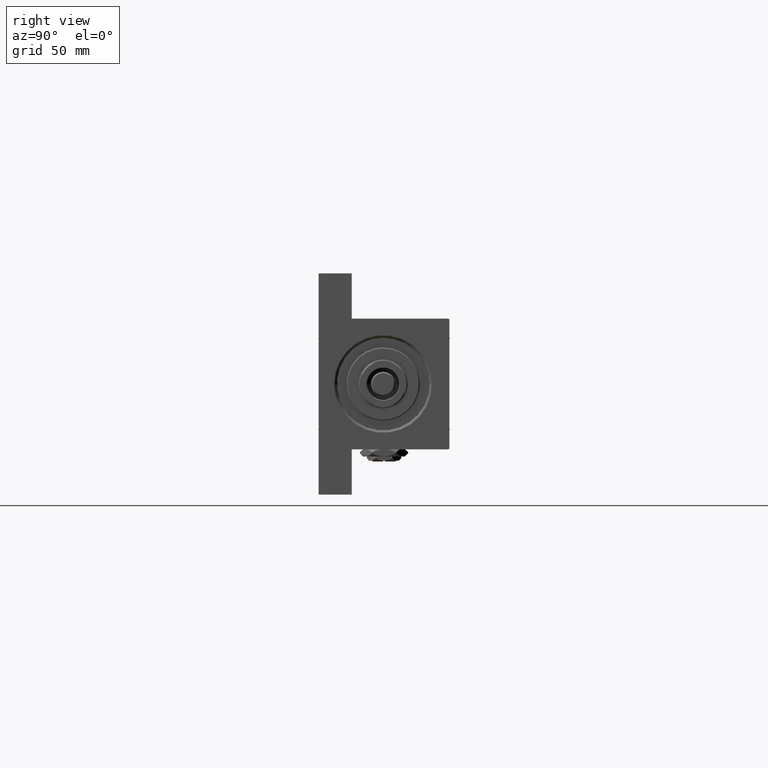
[diagram: clean part render]
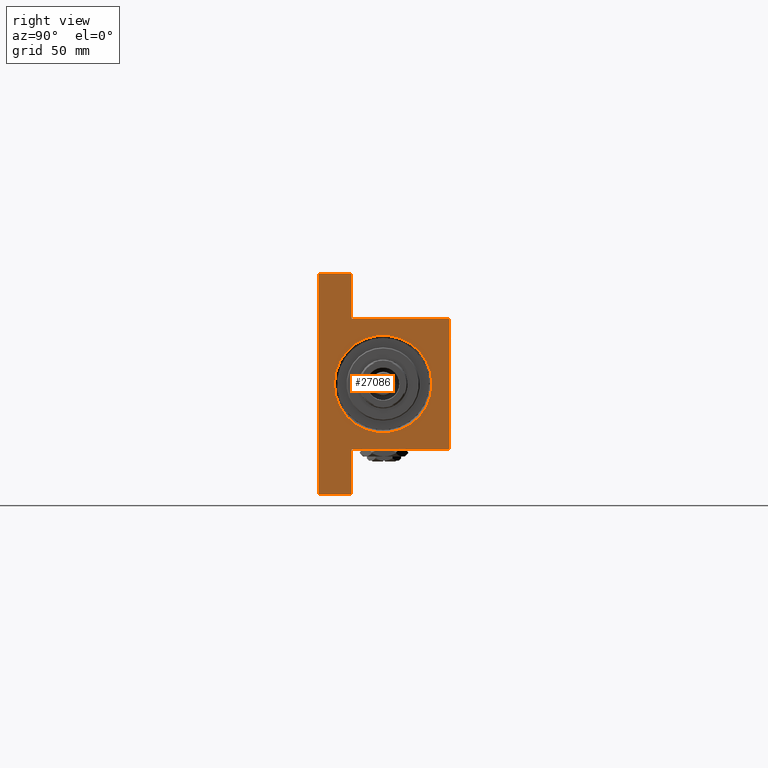
[diagram: same view with one face highlighted and labeled with its STEP entity id]
A machine part, right view. The second image highlights one B-rep face of the part: STEP entity #27086.
In plain terms, the highlighted planar face has unit normal (-1, 0, 0).
Its self-contained STEP definition (entity closure, byte-faithful):
#345 = VECTOR ( 'NONE', #2180, 1000.000000000000000 ) ;
#559 = ORIENTED_EDGE ( 'NONE', *, *, #13127, .T. ) ;
#2036 = DIRECTION ( 'NONE',  ( 0.000000000000000000, -0.7071067811865474617, 0.7071067811865474617 ) ) ;
#2180 = DIRECTION ( 'NONE',  ( 0.000000000000000000, -1.000000000000000000, 0.000000000000000000 ) ) ;
#2641 = DIRECTION ( 'NONE',  ( 0.000000000000000000, 0.000000000000000000, 1.000000000000000000 ) ) ;
#4149 = EDGE_CURVE ( 'NONE', #37457, #33156, #31468, .T. ) ;
#4625 = CARTESIAN_POINT ( 'NONE',  ( 333.9999999999999432, 0.000000000000000000, -28.49999999999994316 ) ) ;
#5819 = EDGE_CURVE ( 'NONE', #24150, #33156, #17921, .T. ) ;
#5919 = ORIENTED_EDGE ( 'NONE', *, *, #44639, .T. ) ;
#6065 = DIRECTION ( 'NONE',  ( 0.000000000000000000, -1.000000000000000000, -1.850371707708594316E-16 ) ) ;
#6443 = DIRECTION ( 'NONE',  ( -1.000000000000000000, -0.000000000000000000, 0.000000000000000000 ) ) ;
#7077 = LINE ( 'NONE', #45537, #20222 ) ;
#7768 = CARTESIAN_POINT ( 'NONE',  ( 333.9999999999999432, -37.50000000000000000, 36.99999999999992184 ) ) ;
#7821 = VECTOR ( 'NONE', #9609, 1000.000000000000000 ) ;
#7839 = PLANE ( 'NONE',  #18897 ) ;
#8930 = CARTESIAN_POINT ( 'NONE',  ( 333.9999999999999432, -36.99999999999994316, 37.49999999999997868 ) ) ;
#9609 = DIRECTION ( 'NONE',  ( 0.000000000000000000, -9.251858538542972814E-17, -1.000000000000000000 ) ) ;
#9745 = VERTEX_POINT ( 'NONE', #20756 ) ;
#10371 = VECTOR ( 'NONE', #2036, 1000.000000000000114 ) ;
#10665 = VERTEX_POINT ( 'NONE', #24639 ) ;
#11171 = CARTESIAN_POINT ( 'NONE',  ( 333.9999999999999432, -63.50000000000002842, -18.50000000000000000 ) ) ;
#11337 = VECTOR ( 'NONE', #16927, 1000.000000000000000 ) ;
#11373 = FACE_BOUND ( 'NONE', #25705, .T. ) ;
#11668 = ORIENTED_EDGE ( 'NONE', *, *, #40325, .T. ) ;
#12669 = ORIENTED_EDGE ( 'NONE', *, *, #33558, .T. ) ;
#12671 = DIRECTION ( 'NONE',  ( 0.000000000000000000, 0.000000000000000000, -1.000000000000000000 ) ) ;
#12873 = EDGE_CURVE ( 'NONE', #24150, #23277, #45204, .T. ) ;
#13127 = EDGE_CURVE ( 'NONE', #10665, #13437, #33282, .T. ) ;
#13182 = CARTESIAN_POINT ( 'NONE',  ( 333.9999999999999432, -63.50000000000002842, -18.50000000000000000 ) ) ;
#13412 = CARTESIAN_POINT ( 'NONE',  ( 333.9999999999999432, 36.99999999999994316, 37.49999999999999289 ) ) ;
#13437 = VERTEX_POINT ( 'NONE', #4625 ) ;
#14418 = CARTESIAN_POINT ( 'NONE',  ( 333.9999999999999432, 0.000000000000000000, -0.5000000000000004441 ) ) ;
#14943 = EDGE_CURVE ( 'NONE', #37986, #28603, #47356, .T. ) ;
#16044 = CARTESIAN_POINT ( 'NONE',  ( 333.9999999999999432, 37.50000000000000000, 37.49999999999999289 ) ) ;
#16179 = VECTOR ( 'NONE', #23640, 1000.000000000000000 ) ;
#16927 = DIRECTION ( 'NONE',  ( 0.000000000000000000, -1.000000000000000000, 0.000000000000000000 ) ) ;
#17151 = AXIS2_PLACEMENT_3D ( 'NONE', #37793, #6443, #2641 ) ;
#17921 = LINE ( 'NONE', #32615, #11337 ) ;
#18897 = AXIS2_PLACEMENT_3D ( 'NONE', #35646, #23761, #43232 ) ;
#19635 = VECTOR ( 'NONE', #41885, 1000.000000000000000 ) ;
#19707 = FACE_OUTER_BOUND ( 'NONE', #35972, .T. ) ;
#20061 = ORIENTED_EDGE ( 'NONE', *, *, #14943, .T. ) ;
#20121 = CARTESIAN_POINT ( 'NONE',  ( 333.9999999999999432, 37.50000000000000000, 36.99999999999993605 ) ) ;
#20222 = VECTOR ( 'NONE', #48852, 1000.000000000000000 ) ;
#20756 = CARTESIAN_POINT ( 'NONE',  ( 333.9999999999999432, 36.99999999999994316, 37.49999999999999289 ) ) ;
#21800 = CARTESIAN_POINT ( 'NONE',  ( 333.9999999999999432, 37.49999999999993605, -18.50000000000000000 ) ) ;
#22275 = CARTESIAN_POINT ( 'NONE',  ( 333.9999999999999432, 63.49999999999997158, -37.50000000000000000 ) ) ;
#22418 = VERTEX_POINT ( 'NONE', #42355 ) ;
#23161 = VECTOR ( 'NONE', #46972, 1000.000000000000114 ) ;
#23277 = VERTEX_POINT ( 'NONE', #22275 ) ;
#23640 = DIRECTION ( 'NONE',  ( 0.000000000000000000, 0.000000000000000000, -1.000000000000000000 ) ) ;
#23761 = DIRECTION ( 'NONE',  ( -1.000000000000000000, -0.000000000000000000, 0.000000000000000000 ) ) ;
#24150 = VERTEX_POINT ( 'NONE', #46556 ) ;
#24282 = CIRCLE ( 'NONE', #30736, 27.99999999999994316 ) ;
#24639 = CARTESIAN_POINT ( 'NONE',  ( 333.9999999999999432, 3.429011037612582176E-15, 27.49999999999993960 ) ) ;
#25453 = LINE ( 'NONE', #33536, #345 ) ;
#25480 = CARTESIAN_POINT ( 'NONE',  ( 333.9999999999999432, 63.49999999999997158, -18.50000000000000000 ) ) ;
#25541 = CARTESIAN_POINT ( 'NONE',  ( 333.9999999999999432, -37.50000000000000000, 37.49999999999997868 ) ) ;
#25705 = EDGE_LOOP ( 'NONE', ( #5919, #559 ) ) ;
#27086 = ADVANCED_FACE ( 'NONE', ( #11373, #19707 ), #7839, .F. ) ;
#27580 = EDGE_CURVE ( 'NONE', #23277, #28603, #25453, .T. ) ;
#28603 = VERTEX_POINT ( 'NONE', #29100 ) ;
#28670 = ORIENTED_EDGE ( 'NONE', *, *, #27580, .F. ) ;
#29100 = CARTESIAN_POINT ( 'NONE',  ( 333.9999999999999432, -63.50000000000002842, -37.50000000000000000 ) ) ;
#29595 = DIRECTION ( 'NONE',  ( -1.000000000000000000, -0.000000000000000000, 0.000000000000000000 ) ) ;
#30736 = AXIS2_PLACEMENT_3D ( 'NONE', #14418, #29595, #33395 ) ;
#31036 = ORIENTED_EDGE ( 'NONE', *, *, #44625, .T. ) ;
#31468 = LINE ( 'NONE', #16044, #16179 ) ;
#32615 = CARTESIAN_POINT ( 'NONE',  ( 333.9999999999999432, 63.49999999999997158, -18.50000000000000000 ) ) ;
#33156 = VERTEX_POINT ( 'NONE', #21800 ) ;
#33282 = CIRCLE ( 'NONE', #17151, 27.99999999999994316 ) ;
#33395 = DIRECTION ( 'NONE',  ( 0.000000000000000000, 0.000000000000000000, 1.000000000000000000 ) ) ;
#33536 = CARTESIAN_POINT ( 'NONE',  ( 333.9999999999999432, 37.50000000000000000, -37.50000000000000000 ) ) ;
#33558 = EDGE_CURVE ( 'NONE', #37763, #22418, #37424, .T. ) ;
#34923 = VERTEX_POINT ( 'NONE', #8930 ) ;
#34988 = ORIENTED_EDGE ( 'NONE', *, *, #4149, .F. ) ;
#35646 = CARTESIAN_POINT ( 'NONE',  ( 333.9999999999999432, 0.000000000000000000, 0.000000000000000000 ) ) ;
#35972 = EDGE_LOOP ( 'NONE', ( #34988, #11668, #40305, #40999, #12669, #31036, #20061, #28670, #48180, #49410 ) ) ;
#36872 = EDGE_CURVE ( 'NONE', #34923, #37763, #38392, .T. ) ;
#37424 = LINE ( 'NONE', #25541, #7821 ) ;
#37457 = VERTEX_POINT ( 'NONE', #20121 ) ;
#37763 = VERTEX_POINT ( 'NONE', #43843 ) ;
#37793 = CARTESIAN_POINT ( 'NONE',  ( 333.9999999999999432, 0.000000000000000000, -0.5000000000000004441 ) ) ;
#37986 = VERTEX_POINT ( 'NONE', #11171 ) ;
#38392 = LINE ( 'NONE', #7768, #23161 ) ;
#38801 = VECTOR ( 'NONE', #6065, 1000.000000000000000 ) ;
#40210 = LINE ( 'NONE', #44260, #38801 ) ;
#40305 = ORIENTED_EDGE ( 'NONE', *, *, #45415, .T. ) ;
#40325 = EDGE_CURVE ( 'NONE', #37457, #9745, #48587, .T. ) ;
#40999 = ORIENTED_EDGE ( 'NONE', *, *, #36872, .T. ) ;
#41885 = DIRECTION ( 'NONE',  ( 0.000000000000000000, 0.000000000000000000, -1.000000000000000000 ) ) ;
#42355 = CARTESIAN_POINT ( 'NONE',  ( 333.9999999999999432, -37.50000000000000711, -18.50000000000000355 ) ) ;
#43232 = DIRECTION ( 'NONE',  ( 0.000000000000000000, 0.000000000000000000, 1.000000000000000000 ) ) ;
#43843 = CARTESIAN_POINT ( 'NONE',  ( 333.9999999999999432, -37.50000000000000000, 36.99999999999992184 ) ) ;
#44260 = CARTESIAN_POINT ( 'NONE',  ( 333.9999999999999432, 37.50000000000000000, 37.49999999999999289 ) ) ;
#44625 = EDGE_CURVE ( 'NONE', #22418, #37986, #7077, .T. ) ;
#44639 = EDGE_CURVE ( 'NONE', #13437, #10665, #24282, .T. ) ;
#45204 = LINE ( 'NONE', #25480, #19635 ) ;
#45415 = EDGE_CURVE ( 'NONE', #9745, #34923, #40210, .T. ) ;
#45537 = CARTESIAN_POINT ( 'NONE',  ( 333.9999999999999432, -63.50000000000002842, -18.50000000000000000 ) ) ;
#46556 = CARTESIAN_POINT ( 'NONE',  ( 333.9999999999999432, 63.49999999999997158, -18.50000000000000000 ) ) ;
#46972 = DIRECTION ( 'NONE',  ( -0.000000000000000000, -0.7071067811865474617, -0.7071067811865474617 ) ) ;
#47356 = LINE ( 'NONE', #13182, #49526 ) ;
#48180 = ORIENTED_EDGE ( 'NONE', *, *, #12873, .F. ) ;
#48587 = LINE ( 'NONE', #13412, #10371 ) ;
#48852 = DIRECTION ( 'NONE',  ( -0.000000000000000000, -1.000000000000000000, -0.000000000000000000 ) ) ;
#49410 = ORIENTED_EDGE ( 'NONE', *, *, #5819, .T. ) ;
#49526 = VECTOR ( 'NONE', #12671, 1000.000000000000000 ) ;